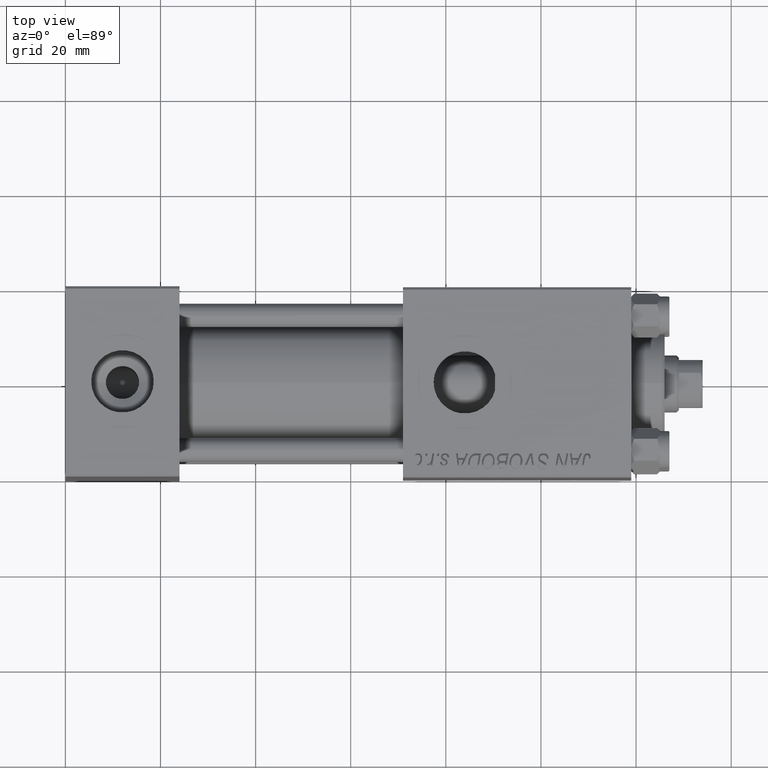
[diagram: clean part render]
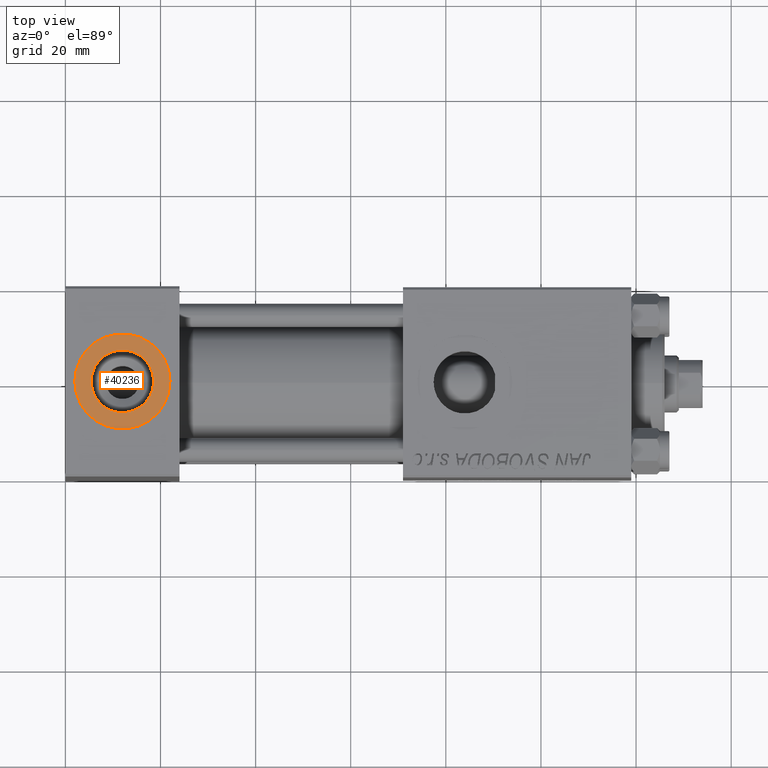
[diagram: same view with one face highlighted and labeled with its STEP entity id]
A machine part, top view. The second image highlights one B-rep face of the part: STEP entity #40236.
In plain terms, the highlighted planar face has unit normal (0, 0, 1).
Its self-contained STEP definition (entity closure, byte-faithful):
#1081 = AXIS2_PLACEMENT_3D ( 'NONE', #28282, #43663, #9083 ) ;
#1624 = ORIENTED_EDGE ( 'NONE', *, *, #31151, .T. ) ;
#1698 = FACE_BOUND ( 'NONE', #7490, .T. ) ;
#2429 = VERTEX_POINT ( 'NONE', #17559 ) ;
#4498 = FACE_OUTER_BOUND ( 'NONE', #42386, .T. ) ;
#4752 = AXIS2_PLACEMENT_3D ( 'NONE', #43149, #23240, #8092 ) ;
#4859 = EDGE_CURVE ( 'NONE', #42974, #29119, #47059, .T. ) ;
#4894 = ORIENTED_EDGE ( 'NONE', *, *, #4859, .F. ) ;
#5459 = DIRECTION ( 'NONE',  ( 1.000000000000000000, 0.000000000000000000, 0.000000000000000000 ) ) ;
#7490 = EDGE_LOOP ( 'NONE', ( #4894, #44880 ) ) ;
#8092 = DIRECTION ( 'NONE',  ( 1.000000000000000000, 0.000000000000000000, 0.000000000000000000 ) ) ;
#9083 = DIRECTION ( 'NONE',  ( 1.000000000000000000, 0.000000000000000000, 0.000000000000000000 ) ) ;
#9093 = CARTESIAN_POINT ( 'NONE',  ( 12.00000000000000000, 5.204170427930421283E-15, 31.80000000000000071 ) ) ;
#10399 = CIRCLE ( 'NONE', #4752, 6.579999999999999183 ) ;
#10793 = ORIENTED_EDGE ( 'NONE', *, *, #38082, .T. ) ;
#12059 = DIRECTION ( 'NONE',  ( 0.000000000000000000, 0.000000000000000000, 1.000000000000000000 ) ) ;
#14464 = AXIS2_PLACEMENT_3D ( 'NONE', #33217, #17578, #5459 ) ;
#17559 = CARTESIAN_POINT ( 'NONE',  ( 22.00000000000000000, 5.204170427930421283E-15, 31.80000000000000071 ) ) ;
#17578 = DIRECTION ( 'NONE',  ( 0.000000000000000000, 0.000000000000000000, 1.000000000000000000 ) ) ;
#19429 = AXIS2_PLACEMENT_3D ( 'NONE', #9093, #20705, #36107 ) ;
#20705 = DIRECTION ( 'NONE',  ( 0.000000000000000000, 0.000000000000000000, 1.000000000000000000 ) ) ;
#23240 = DIRECTION ( 'NONE',  ( 0.000000000000000000, 0.000000000000000000, 1.000000000000000000 ) ) ;
#24179 = CARTESIAN_POINT ( 'NONE',  ( 12.00000000000000000, 5.204170427930421283E-15, 31.80000000000000071 ) ) ;
#26081 = CARTESIAN_POINT ( 'NONE',  ( 5.420000000000000817, 6.009988021769379536E-15, 31.80000000000000071 ) ) ;
#26883 = VERTEX_POINT ( 'NONE', #27606 ) ;
#27606 = CARTESIAN_POINT ( 'NONE',  ( 2.000000000000003553, 6.428817227077774342E-15, 31.80000000000000071 ) ) ;
#28282 = CARTESIAN_POINT ( 'NONE',  ( 12.00000000000000000, 5.204170427930421283E-15, 31.80000000000000071 ) ) ;
#29119 = VERTEX_POINT ( 'NONE', #26081 ) ;
#30502 = EDGE_CURVE ( 'NONE', #29119, #42974, #10399, .T. ) ;
#30772 = AXIS2_PLACEMENT_3D ( 'NONE', #24179, #12059, #39311 ) ;
#30880 = CARTESIAN_POINT ( 'NONE',  ( 18.57999999999999829, 5.204170427930421283E-15, 31.80000000000000071 ) ) ;
#31151 = EDGE_CURVE ( 'NONE', #26883, #2429, #44305, .T. ) ;
#33217 = CARTESIAN_POINT ( 'NONE',  ( 12.00000000000000000, 5.204170427930421283E-15, 31.80000000000000071 ) ) ;
#36107 = DIRECTION ( 'NONE',  ( 1.000000000000000000, 0.000000000000000000, 0.000000000000000000 ) ) ;
#38082 = EDGE_CURVE ( 'NONE', #2429, #26883, #46780, .T. ) ;
#39311 = DIRECTION ( 'NONE',  ( 1.000000000000000000, 0.000000000000000000, -0.000000000000000000 ) ) ;
#40236 = ADVANCED_FACE ( 'NONE', ( #1698, #4498 ), #46644, .T. ) ;
#42386 = EDGE_LOOP ( 'NONE', ( #10793, #1624 ) ) ;
#42974 = VERTEX_POINT ( 'NONE', #30880 ) ;
#43149 = CARTESIAN_POINT ( 'NONE',  ( 12.00000000000000000, 5.204170427930421283E-15, 31.80000000000000071 ) ) ;
#43663 = DIRECTION ( 'NONE',  ( 0.000000000000000000, 0.000000000000000000, 1.000000000000000000 ) ) ;
#44305 = CIRCLE ( 'NONE', #14464, 9.999999999999998224 ) ;
#44880 = ORIENTED_EDGE ( 'NONE', *, *, #30502, .F. ) ;
#46644 = PLANE ( 'NONE',  #30772 ) ;
#46780 = CIRCLE ( 'NONE', #19429, 9.999999999999998224 ) ;
#47059 = CIRCLE ( 'NONE', #1081, 6.579999999999999183 ) ;